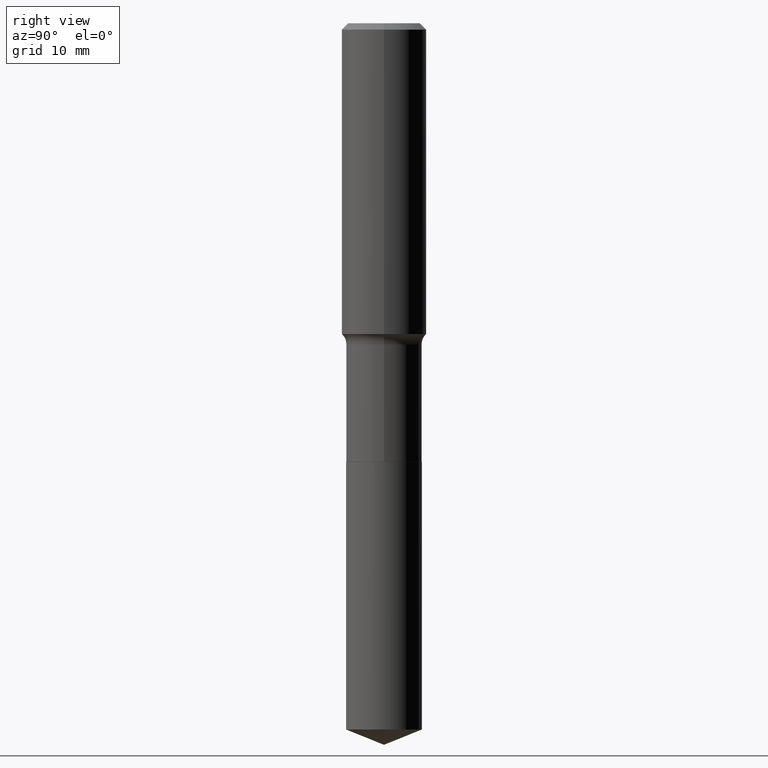
[diagram: clean part render]
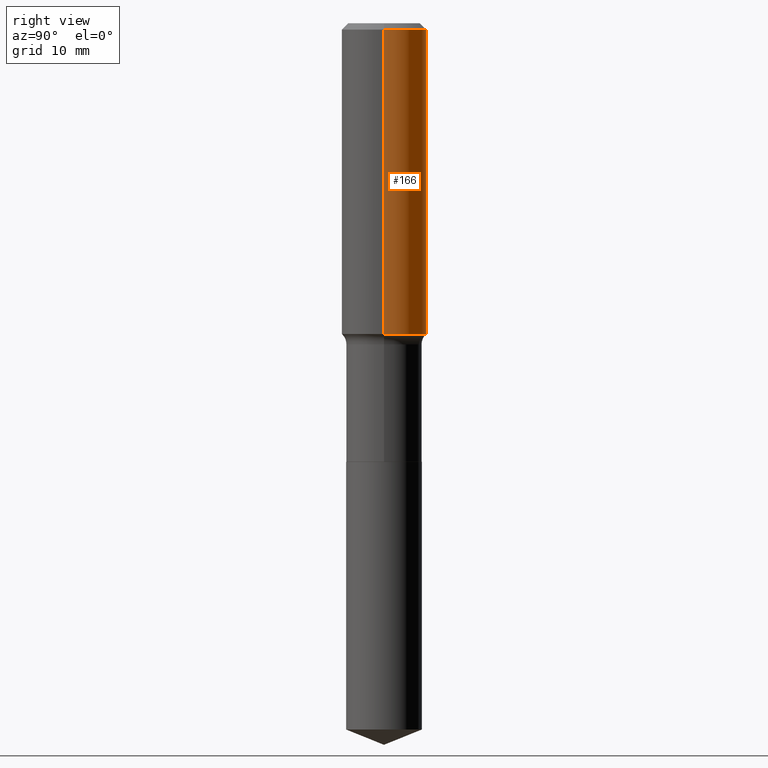
[diagram: same view with one face highlighted and labeled with its STEP entity id]
A machine part, right view. The second image highlights one B-rep face of the part: STEP entity #166.
In plain terms, the highlighted cylindrical surface (partial cylindrical patch) has radius 5.9995 mm, axis along (-0, 0, 1).
Its self-contained STEP definition (entity closure, byte-faithful):
#3 = EDGE_CURVE ( 'NONE', #185, #444, #270, .T. ) ;
#20 = DIRECTION ( 'NONE',  ( 1.000000000000000000, -6.982962677686266711E-15, 4.876176775795935793E-29 ) ) ;
#23 = CARTESIAN_POINT ( 'NONE',  ( 4.229115208764347773E-29, -6.038055686448444993E-15, -1.729367881556277187 ) ) ;
#29 = CIRCLE ( 'NONE', #60, 0.2362000000000002153 ) ;
#50 = CARTESIAN_POINT ( 'NONE',  ( 0.000000000000000000, 0.000000000000000000, 0.000000000000000000 ) ) ;
#60 = AXIS2_PLACEMENT_3D ( 'NONE', #23, #356, #91 ) ;
#81 = CIRCLE ( 'NONE', #281, 0.2361999999999999933 ) ;
#91 = DIRECTION ( 'NONE',  ( 1.000000000000000000, -6.982962677686266711E-15, 0.000000000000000000 ) ) ;
#130 = EDGE_CURVE ( 'NONE', #187, #185, #29, .T. ) ;
#166 = ADVANCED_FACE ( 'NONE', ( #361 ), #236, .T. ) ;
#175 = CARTESIAN_POINT ( 'NONE',  ( 0.2362000000000002153, -7.687431470917942307E-15, -1.729367881556277187 ) ) ;
#178 = ORIENTED_EDGE ( 'NONE', *, *, #237, .F. ) ;
#180 = CARTESIAN_POINT ( 'NONE',  ( 8.664295980313993487E-31, -1.237031838352134079E-16, -0.03543000000000021826 ) ) ;
#185 = VERTEX_POINT ( 'NONE', #371 ) ;
#187 = VERTEX_POINT ( 'NONE', #175 ) ;
#199 = DIRECTION ( 'NONE',  ( -2.445468806185136597E-29, 3.491481338843145583E-15, 1.000000000000000000 ) ) ;
#230 = ORIENTED_EDGE ( 'NONE', *, *, #3, .T. ) ;
#236 = CYLINDRICAL_SURFACE ( 'NONE', #339, 0.2362000000000001043 ) ;
#237 = EDGE_CURVE ( 'NONE', #266, #444, #81, .T. ) ;
#257 = EDGE_CURVE ( 'NONE', #187, #266, #366, .T. ) ;
#266 = VERTEX_POINT ( 'NONE', #408 ) ;
#270 = LINE ( 'NONE', #379, #417 ) ;
#281 = AXIS2_PLACEMENT_3D ( 'NONE', #180, #336, #485 ) ;
#291 = EDGE_LOOP ( 'NONE', ( #381, #230, #178, #480 ) ) ;
#336 = DIRECTION ( 'NONE',  ( -2.445468806185136597E-29, 3.491481338843145583E-15, 1.000000000000000000 ) ) ;
#339 = AXIS2_PLACEMENT_3D ( 'NONE', #50, #199, #20 ) ;
#354 = DIRECTION ( 'NONE',  ( -2.445468806185136877E-29, 3.491481338843145188E-15, 1.000000000000000000 ) ) ;
#356 = DIRECTION ( 'NONE',  ( -2.445468806185136597E-29, 3.491481338843145583E-15, 1.000000000000000000 ) ) ;
#361 = FACE_OUTER_BOUND ( 'NONE', #291, .T. ) ;
#366 = LINE ( 'NONE', #445, #410 ) ;
#371 = CARTESIAN_POINT ( 'NONE',  ( -0.2362000000000002153, -4.359753744583087021E-15, -1.729367881556277187 ) ) ;
#373 = DIRECTION ( 'NONE',  ( -2.445468806185136877E-29, 3.491481338843145188E-15, 1.000000000000000000 ) ) ;
#379 = CARTESIAN_POINT ( 'NONE',  ( -0.2362000000000001043, 1.678301941865357380E-15, -1.161852468318209317E-29 ) ) ;
#381 = ORIENTED_EDGE ( 'NONE', *, *, #130, .T. ) ;
#408 = CARTESIAN_POINT ( 'NONE',  ( 0.2361999999999999933, -1.773078968304709514E-15, -0.03543000000000021826 ) ) ;
#410 = VECTOR ( 'NONE', #373, 39.37007874015748143 ) ;
#417 = VECTOR ( 'NONE', #354, 39.37007874015748143 ) ;
#422 = CARTESIAN_POINT ( 'NONE',  ( -0.2361999999999999933, -1.402577493276471315E-15, -0.03543000000000021826 ) ) ;
#444 = VERTEX_POINT ( 'NONE', #422 ) ;
#445 = CARTESIAN_POINT ( 'NONE',  ( 0.2362000000000001043, -1.649375784469496920E-15, 1.151752954443000508E-29 ) ) ;
#480 = ORIENTED_EDGE ( 'NONE', *, *, #257, .F. ) ;
#485 = DIRECTION ( 'NONE',  ( 1.000000000000000000, -6.982962677686266711E-15, 0.000000000000000000 ) ) ;